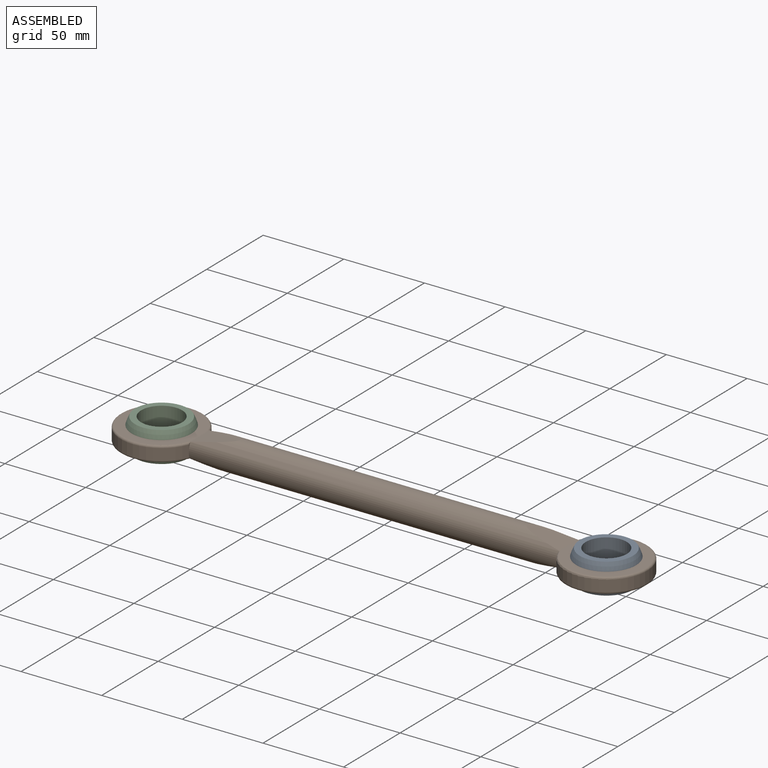
[diagram: assembled view]
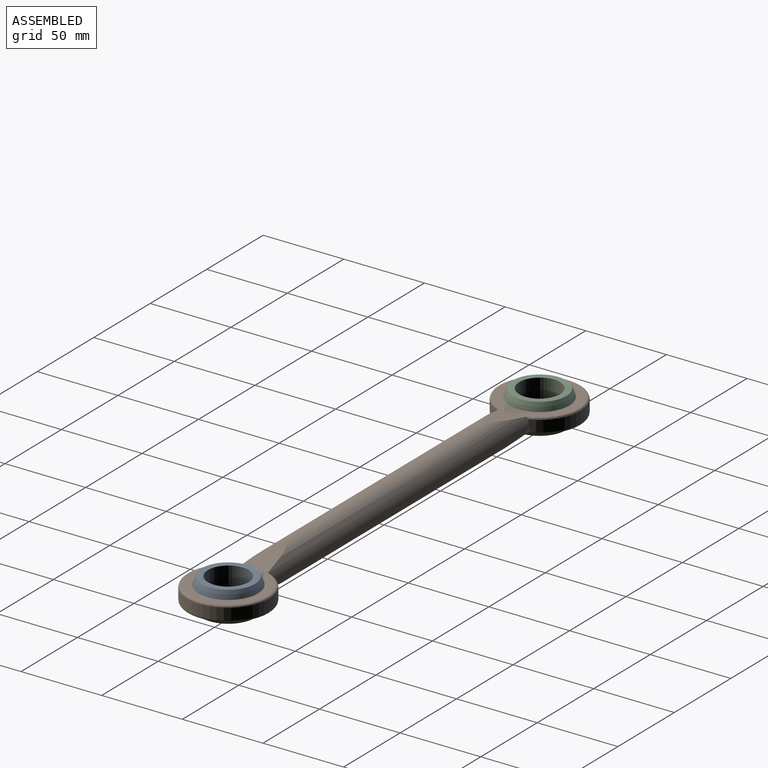
[diagram: assembled view, second angle]
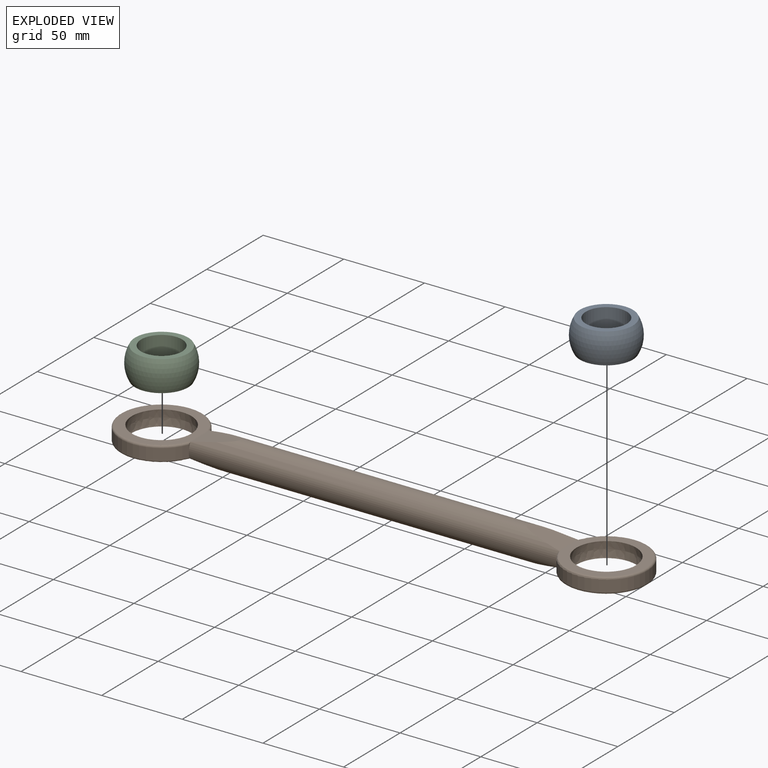
[diagram: exploded view]
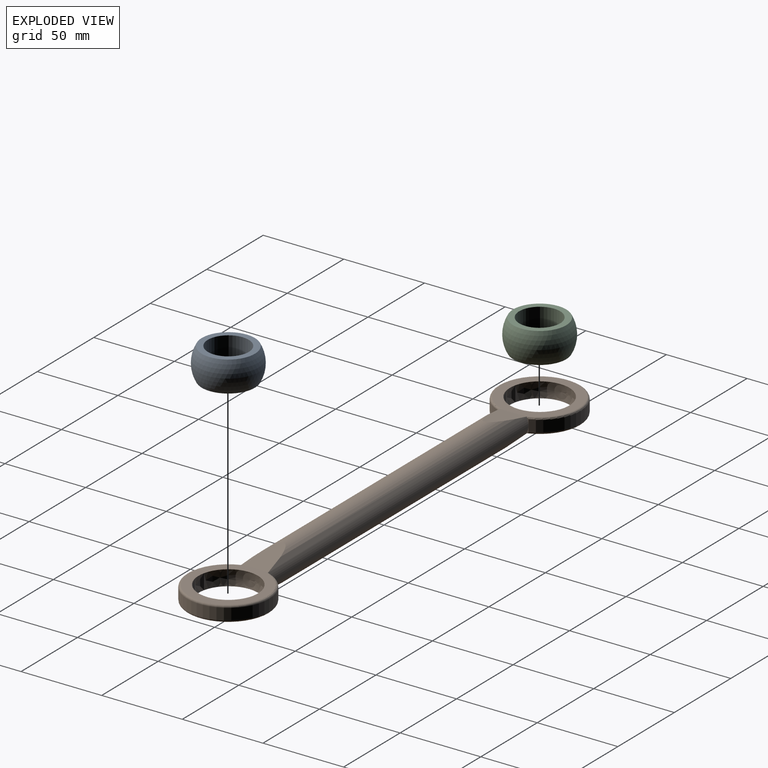
[diagram: exploded view, second angle]
ASSEMBLY  parts=3 mates=2
PART A: 4 faces, bbox 38.1x38.1x19.1 mm
  f0: plane 33x33mm, normal (0,0,-1), area 348.4mm2, adj f1,f3
  f1: sphere r=19.05mm, area 2280.2mm2, adj f0,f2
  f2: plane 33x33mm, normal (0,0,1), area 348.4mm2, adj f1,f3
  f3: cylinder r=12.7mm len=25.4mm, axis (0,0,1), area 1520.1mm2, adj f0,f2
PART B: 25 faces, bbox 330.7x55x38.2 mm
  f0: cylinder r=9.53mm len=229.44mm, axis (1,0,0), area 12356.3mm2, adj f1,f2,f3,f4,f8,f9,f10,f11
  f1: plane 4.4x1.08mm, normal (-1,0,0), area 1.2mm2, adj f0,f5,f21
  f2: plane 4.4x1.08mm, normal (-1,0,0), area 1.2mm2, adj f0,f5,f22
  f3: plane 4.4x1.08mm, normal (-1,0,0), area 1.2mm2, adj f0,f5,f22
  f4: plane 4.4x1.08mm, normal (-1,0,0), area 1.2mm2, adj f0,f5,f21
  f5: cylinder r=25.4mm len=50.8mm, axis (0,0,-1), area 978.4mm2, adj f1,f2,f3,f4,f21,f22
  f6: plane 48.26x47.68mm, normal (0,0,1), area 756.3mm2, adj f16,f18,f22
  f7: plane 48.26x47.68mm, normal (0,0,-1), area 756.3mm2, adj f16,f17,f21
  f8: plane 4.4x1.08mm, normal (1,0,0), area 1.2mm2, adj f0,f12,f23
  f9: plane 4.4x1.08mm, normal (1,0,0), area 1.2mm2, adj f0,f12,f24
  f10: plane 4.4x1.08mm, normal (1,0,0), area 1.2mm2, adj f0,f12,f24
  f11: plane 4.4x1.08mm, normal (1,0,0), area 1.2mm2, adj f0,f12,f23
  f12: cylinder r=25.4mm len=50.8mm, axis (0,0,-1), area 978.4mm2, adj f8,f9,f10,f11,f23,f24
  f13: plane 48.26x47.68mm, normal (0,0,1), area 756.3mm2, adj f15,f19,f24
  f14: plane 48.26x47.68mm, normal (0,0,-1), area 756.3mm2, adj f15,f20,f23
  f15: sphere r=19.05mm, area 1141.4mm2, adj f13,f14
  f16: sphere r=19.05mm, area 1141.4mm2, adj f6,f7
  f17: plane 25.88x16.65mm, normal (0.18,0,-0.98), area 303.3mm2, adj f0,f7,f21
  f18: plane 25.88x16.65mm, normal (0.18,0,0.98), area 303.3mm2, adj f0,f6,f22
  f19: plane 25.88x16.65mm, normal (-0.18,0,0.98), area 303.3mm2, adj f0,f13,f24
  f20: plane 25.88x16.65mm, normal (-0.18,0,-0.98), area 303.3mm2, adj f0,f14,f23
  f21: torus R=24.13mm, axis (0,0,1), area 278.3mm2, adj f0,f1,f4,f5,f7,f17
  f22: torus R=24.13mm, axis (0,0,1), area 278.3mm2, adj f0,f2,f3,f5,f6,f18
  f23: torus R=24.13mm, axis (0,0,1), area 278.3mm2, adj f0,f8,f11,f12,f14,f20
  f24: torus R=24.13mm, axis (0,0,1), area 278.3mm2, adj f0,f9,f10,f12,f13,f19
PART C: same geometry as A
PLACE A t=(137.85,0,0)mm
PLACE B at identity
PLACE C t=(-137.85,0,0)mm
MATE ball C.f3 <-> B.f12  axis (0,0,1) through (-137.85,0,0)mm
MATE ball A.f3 <-> B.f5  axis (0,0,1) through (137.85,0,0)mm
